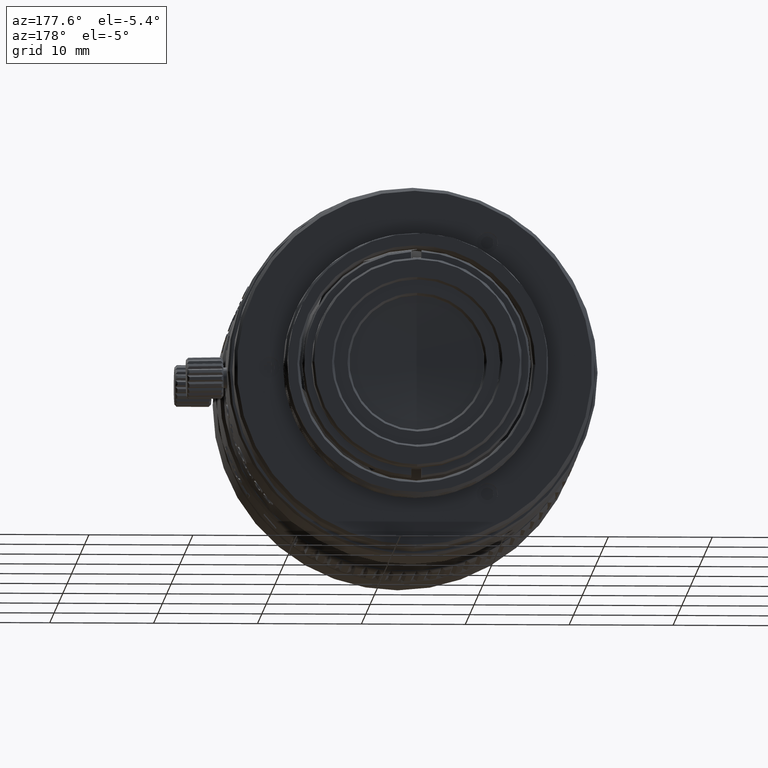
[diagram: clean part render]
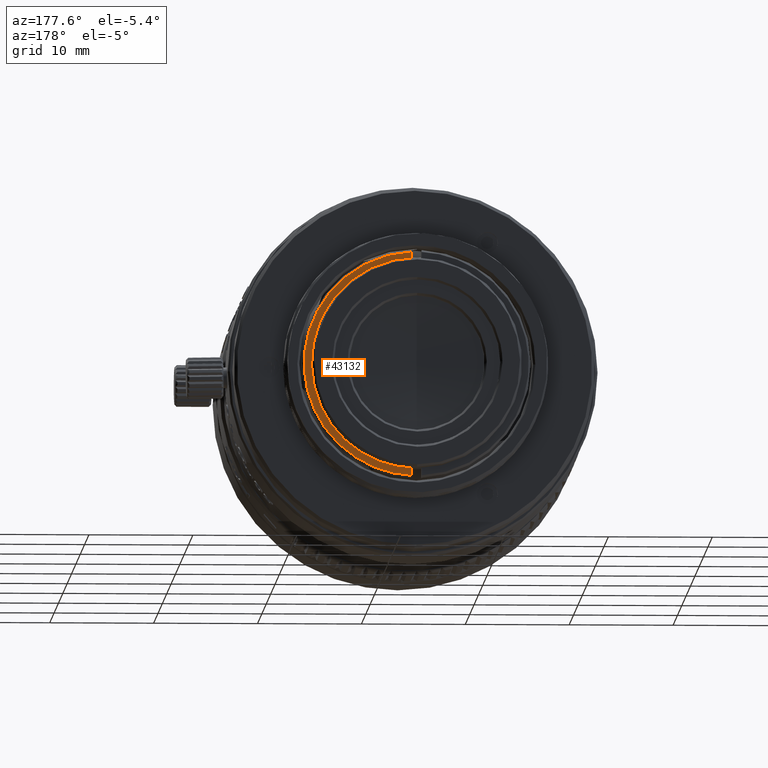
[diagram: same view with one face highlighted and labeled with its STEP entity id]
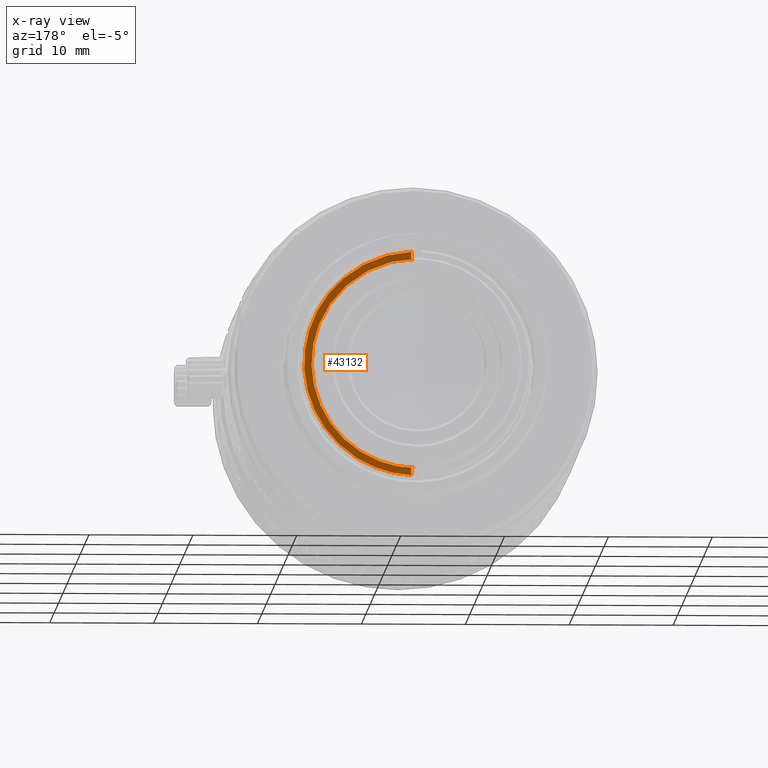
[diagram: x-ray of the same camera — body ghosted, the highlighted face saturated]
A machine part, auxiliary view. The second image highlights one B-rep face of the part: STEP entity #43132.
The next image is the same camera in x-ray: the body ghosted, the highlighted face saturated — about 0% of this face is hidden behind the body in this view.
In plain terms, the highlighted planar face has unit normal (-0, 1, 0).
Its self-contained STEP definition (entity closure, byte-faithful):
#529 = CARTESIAN_POINT ( 'NONE',  ( 27.33713607744954288, 26.79968554691911109, -14.85635807048966051 ) ) ;
#2360 = CARTESIAN_POINT ( 'NONE',  ( 25.56047190054950491, 26.79968554691999572, -10.30284207780749028 ) ) ;
#2707 = CARTESIAN_POINT ( 'NONE',  ( 23.60299717634650563, 26.79968554692000282, -8.589256409288241301 ) ) ;
#3398 = CARTESIAN_POINT ( 'NONE',  ( 19.86673896193413213, 26.79968554691999216, -6.962509980710264834 ) ) ;
#3749 = CARTESIAN_POINT ( 'NONE',  ( 25.80935437055234161, 26.79968554691999216, -24.43642396941281447 ) ) ;
#4094 = CARTESIAN_POINT ( 'NONE',  ( 18.00001204310195391, 26.79968554692106508, -28.28842973922828463 ) ) ;
#4449 = CARTESIAN_POINT ( 'NONE',  ( 28.29998020006328474, 26.79968554691999927, -16.85659046143310391 ) ) ;
#4803 = CARTESIAN_POINT ( 'NONE',  ( 26.81950141474292337, 26.79968554691999927, -22.95853280051197487 ) ) ;
#5147 = CARTESIAN_POINT ( 'NONE',  ( 21.87438170916146163, 26.79968554691999927, -27.37455550460336440 ) ) ;
#6916 = CARTESIAN_POINT ( 'NONE',  ( 27.60001204310027134, 26.79968554691911109, -18.82209861090353797 ) ) ;
#6949 = DIRECTION ( 'NONE',  ( -1.000000000000000000, -0.000000000000000000, -0.000000000000000000 ) ) ;
#7098 = VECTOR ( 'NONE', #29794, 1000.000000000000000 ) ;
#7333 = CARTESIAN_POINT ( 'NONE',  ( 24.26832506996089833, 26.79968554692000282, -9.053093370476080537 ) ) ;
#7684 = CARTESIAN_POINT ( 'NONE',  ( 21.56163175181769276, 26.79968554692000637, -7.492206879399524233 ) ) ;
#7984 = B_SPLINE_CURVE_WITH_KNOTS ( 'NONE', 3,
 ( #34026, #43664, #17625, #61467, #22962, #44719, #27249, #529, #39359, #6916, #65408, #38311, #60058, #11220, #22253, #55070, #44006, #49715 ),
 .UNSPECIFIED., .F., .F.,
 ( 4, 2, 2, 2, 2, 2, 2, 2, 4 ),
 ( 0.000000000000000000, 0.1250000000000000000, 0.2500000000000000000, 0.3750000000000000000, 0.5000000000000000000, 0.6250000000000000000, 0.7500000000000000000, 0.8750000000000000000, 1.000000000000000000 ),
 .UNSPECIFIED. ) ;
#8038 = CARTESIAN_POINT ( 'NONE',  ( 26.58857811623154532, 26.79968554692000282, -11.66514757952476344 ) ) ;
#9091 = CARTESIAN_POINT ( 'NONE',  ( 25.06263400779056738, 26.79968554692000282, -25.21862639297154374 ) ) ;
#9450 = CARTESIAN_POINT ( 'NONE',  ( 18.64324650201194444, 26.79968554691998861, -28.25861839632663930 ) ) ;
#9592 = PLANE ( 'NONE',  #34929 ) ;
#9791 = CARTESIAN_POINT ( 'NONE',  ( 26.95227233407412015, 26.79968554692000282, -22.72980570607565554 ) ) ;
#9940 = DIRECTION ( 'NONE',  ( 0.000000000000000000, -0.000000000000000000, 1.000000000000000000 ) ) ;
#10144 = CARTESIAN_POINT ( 'NONE',  ( 27.46735415838124439, 26.79968554691998506, -13.33995215619159502 ) ) ;
#10489 = CARTESIAN_POINT ( 'NONE',  ( 20.48212514140808693, 26.79968554691999927, -27.88262810915834322 ) ) ;
#10775 = VECTOR ( 'NONE', #28926, 1000.000000000000000 ) ;
#11220 = CARTESIAN_POINT ( 'NONE',  ( 23.70693391484915935, 26.79968554691911109, -25.57664681073966761 ) ) ;
#11468 = LINE ( 'NONE', #49617, #10775 ) ;
#11722 = EDGE_CURVE ( 'NONE', #20011, #41720, #7984, .T. ) ;
#12490 = VERTEX_POINT ( 'NONE', #34481 ) ;
#13047 = CARTESIAN_POINT ( 'NONE',  ( 18.32146130947540286, 26.79968554692000637, -6.726491552843290478 ) ) ;
#13400 = CARTESIAN_POINT ( 'NONE',  ( 26.53858885427339231, 26.79968554692000282, -11.58796707142741234 ) ) ;
#14107 = CARTESIAN_POINT ( 'NONE',  ( 18.80079432342783718, 26.79968554691999927, -6.770143046135738807 ) ) ;
#14448 = CARTESIAN_POINT ( 'NONE',  ( 19.98882452186247249, 26.79968554692000282, -28.00935080694689105 ) ) ;
#14819 = CARTESIAN_POINT ( 'NONE',  ( 23.74938675376660768, 26.79968554692000282, -26.30869993205574175 ) ) ;
#15179 = CARTESIAN_POINT ( 'NONE',  ( 28.17555686477118115, 26.79968554692000282, -19.13838155067529456 ) ) ;
#15420 = EDGE_CURVE ( 'NONE', #12490, #28917, #22661, .T. ) ;
#15523 = CARTESIAN_POINT ( 'NONE',  ( 28.07249572314301034, 26.79968554691999927, -15.29195520994843704 ) ) ;
#15865 = CARTESIAN_POINT ( 'NONE',  ( 22.11706206651808770, 26.79968554691999927, -27.26407096869130342 ) ) ;
#17336 = CARTESIAN_POINT ( 'NONE',  ( 18.00001204310621006, 26.79968554691999927, -6.280056944337999880 ) ) ;
#17518 = ORIENTED_EDGE ( 'NONE', *, *, #49829, .T. ) ;
#17625 = CARTESIAN_POINT ( 'NONE',  ( 20.14366567512839978, 26.79968554691910754, -7.662887668169943822 ) ) ;
#18033 = CARTESIAN_POINT ( 'NONE',  ( 21.28564626321333009, 26.79968554692000637, -7.382666502847968104 ) ) ;
#18383 = CARTESIAN_POINT ( 'NONE',  ( 18.00001204310299130, 26.79968554692071336, -6.711593665809799880 ) ) ;
#18392 = CARTESIAN_POINT ( 'NONE',  ( 18.00001204310299130, 26.79968554692071336, -6.711593665809799880 ) ) ;
#19311 = CARTESIAN_POINT ( 'NONE',  ( 17.50001204784383901, 26.79968554691976124, -27.60001170251995006 ) ) ;
#19790 = CARTESIAN_POINT ( 'NONE',  ( 21.52407330143829967, 26.79968554691999572, -27.52811439305934726 ) ) ;
#20011 = VERTEX_POINT ( 'NONE', #34560 ) ;
#20138 = CARTESIAN_POINT ( 'NONE',  ( 22.93948971335742115, 26.79968554691999572, -26.84198542652822539 ) ) ;
#20497 = CARTESIAN_POINT ( 'NONE',  ( 28.30002544619962634, 26.79968554691999927, -17.82172232306468374 ) ) ;
#20852 = CARTESIAN_POINT ( 'NONE',  ( 28.24287792501077377, 26.79968554692000282, -16.21726807795503333 ) ) ;
#21189 = CARTESIAN_POINT ( 'NONE',  ( 27.78176980312604982, 26.79968554692000282, -20.81319109728473649 ) ) ;
#22253 = CARTESIAN_POINT ( 'NONE',  ( 22.58656374484899487, 26.79968554691910398, -26.32525422489630884 ) ) ;
#22661 = LINE ( 'NONE', #17336, #48120 ) ;
#22962 = CARTESIAN_POINT ( 'NONE',  ( 23.70693391484596191, 26.79968554691910754, -9.423376594297881326 ) ) ;
#23725 = CARTESIAN_POINT ( 'NONE',  ( 21.75745361187669502, 26.79968554692000993, -7.574492694009251181 ) ) ;
#23785 = CARTESIAN_POINT ( 'NONE',  ( 18.00001204310195391, 26.79968554692106508, -28.28842973922828463 ) ) ;
#25128 = CARTESIAN_POINT ( 'NONE',  ( 21.67921738303905954, 26.79968554691999927, -7.541293001918196737 ) ) ;
#25479 = CARTESIAN_POINT ( 'NONE',  ( 27.56648502391222522, 26.79968554691999572, -13.58748732544543003 ) ) ;
#25826 = CARTESIAN_POINT ( 'NONE',  ( 27.51709315295559932, 26.79968554692000282, -13.46267400176193796 ) ) ;
#26188 = CARTESIAN_POINT ( 'NONE',  ( 27.45502594864455403, 26.79968554691999572, -21.70273719311448701 ) ) ;
#26543 = CARTESIAN_POINT ( 'NONE',  ( 24.67162662991011146, 26.79968554691999927, -25.58934416184048999 ) ) ;
#26880 = CARTESIAN_POINT ( 'NONE',  ( 28.12513568677261944, 26.79968554692000282, -15.56427012500696350 ) ) ;
#27041 = ORIENTED_EDGE ( 'NONE', *, *, #11722, .F. ) ;
#27112 = ORIENTED_EDGE ( 'NONE', *, *, #53288, .T. ) ;
#27249 = CARTESIAN_POINT ( 'NONE',  ( 26.32525456547731579, 26.79968554691910754, -12.41346000077276202 ) ) ;
#28917 = VERTEX_POINT ( 'NONE', #18383 ) ;
#28926 = DIRECTION ( 'NONE',  ( 1.000000000000000000, 0.000000000000000000, 0.000000000000000000 ) ) ;
#29441 = CARTESIAN_POINT ( 'NONE',  ( 22.63203422411329058, 26.79968554691999216, -7.985668884362986830 ) ) ;
#29794 = DIRECTION ( 'NONE',  ( 0.000000000000000000, -0.000000000000000000, 1.000000000000000000 ) ) ;
#30487 = CARTESIAN_POINT ( 'NONE',  ( 19.35504462323355668, 26.79968554691999927, -6.858352948107492963 ) ) ;
#30845 = CARTESIAN_POINT ( 'NONE',  ( 28.14275979132685279, 26.79968554691999927, -19.33671167225441323 ) ) ;
#31209 = CARTESIAN_POINT ( 'NONE',  ( 28.27862341638762089, 26.79968554691999216, -18.30249950856731189 ) ) ;
#31553 = CARTESIAN_POINT ( 'NONE',  ( 26.25122105183945820, 26.79968554691999216, -23.87000631971318043 ) ) ;
#31905 = CARTESIAN_POINT ( 'NONE',  ( 27.68512398904423577, 26.79968554691999927, -21.09395197531915400 ) ) ;
#32253 = CARTESIAN_POINT ( 'NONE',  ( 20.19516786306562039, 26.79968554691999927, -27.95893419698714766 ) ) ;
#34026 = CARTESIAN_POINT ( 'NONE',  ( 17.50001204310215996, 26.79968554691961913, -7.400011702519049273 ) ) ;
#34445 = CARTESIAN_POINT ( 'NONE',  ( 23.53131512291296090, 26.79968554692000993, -8.540592243210546997 ) ) ;
#34481 = CARTESIAN_POINT ( 'NONE',  ( 18.00001204310414238, 26.79968554692040428, -7.400011702517978129 ) ) ;
#34560 = CARTESIAN_POINT ( 'NONE',  ( 17.50001204310215996, 26.79968554691961913, -7.400011702519049273 ) ) ;
#34662 = VECTOR ( 'NONE', #6949, 1000.000000000000000 ) ;
#34716 = EDGE_CURVE ( 'NONE', #62809, #54591, #51894, .T. ) ;
#34741 = EDGE_CURVE ( 'NONE', #28917, #62809, #38439, .T. ) ;
#34929 = AXIS2_PLACEMENT_3D ( 'NONE', #47741, #69479, #9940 ) ;
#35825 = CARTESIAN_POINT ( 'NONE',  ( 18.00001204310324354, 26.79968554691999927, -6.280056944337999880 ) ) ;
#36165 = CARTESIAN_POINT ( 'NONE',  ( 27.54977105900491097, 26.79968554691999927, -13.54473300246584166 ) ) ;
#36536 = CARTESIAN_POINT ( 'NONE',  ( 19.27856933981106025, 26.79968554691999927, -28.17201018828195913 ) ) ;
#36679 = FACE_OUTER_BOUND ( 'NONE', #51313, .T. ) ;
#36886 = CARTESIAN_POINT ( 'NONE',  ( 27.08379655684292686, 26.79968554691999927, -12.49886535598977666 ) ) ;
#37238 = CARTESIAN_POINT ( 'NONE',  ( 27.61199223355881216, 26.79968554692000282, -21.29337339468490953 ) ) ;
#37590 = CARTESIAN_POINT ( 'NONE',  ( 21.99677454087494866, 26.79968554691999572, -27.31943819850167543 ) ) ;
#38311 = CARTESIAN_POINT ( 'NONE',  ( 26.32525456547934084, 26.79968554691911109, -22.58656340426375309 ) ) ;
#38439 = B_SPLINE_CURVE_WITH_KNOTS ( 'NONE', 3,
 ( #18392, #13047, #14107, #30487, #40841, #45485, #52242, #3398, #46192, #56535, #56894, #18033, #7684, #25128, #23725, #46886, #39784, #29441, #61528, #67936, #34445, #2707, #7333, #51203, #2360, #45846, #40494, #62241, #13400, #8038, #51556, #36886, #53651, #10144, #25826, #36165, #25479, #42610, #58982, #41536, #15523, #53999, #58286, #42257, #26880, #20852, #4449, #20497, #31209, #64008, #15179, #41886, #30845, #63281, #47950, #58637, #21189, #31905, #69686, #37238, #47228, #26188, #52596, #9791, #4803, #69327, #64354, #31553, #3749, #9091, #26543, #64693, #48301, #70021, #14819, #68974, #20138, #42951, #15865, #37590, #59338, #5147, #19790, #57926, #10489, #32253, #68630, #14448, #63639, #52951, #36536, #9450, #4094 ),
 .UNSPECIFIED., .F., .F.,
 ( 4, 1, 1, 1, 1, 2, 2, 1, 1, 1, 2, 2, 1, 1, 2, 2, 2, 1, 1, 2, 2, 1, 1, 1, 2, 2, 1, 1, 1, 1, 2, 2, 2, 1, 1, 1, 2, 2, 1, 1, 1, 2, 2, 1, 1, 2, 2, 2, 1, 1, 2, 2, 1, 1, 1, 2, 2, 1, 1, 1, 1, 2, 2, 4 ),
 ( 0.000000000000000000, 0.03124999999999483746, 0.04687499999999242967, 0.05468749999999121536, 0.05859374999999061168, 0.06054687499999045902, 0.06249999999999031330, 0.09374999999999278355, 0.1093749999999940326, 0.1171874999999945044, 0.1210937499999947403, 0.1249999999999949762, 0.1562499999999969469, 0.1718749999999979738, 0.1796874999999985012, 0.1874999999999990563, 0.2500000000000031086, 0.2812500000000052180, 0.2968750000000062728, 0.3046875000000068279, 0.3125000000000073830, 0.3437500000000099365, 0.3593750000000111022, 0.3671875000000117684, 0.3710937500000122125, 0.3750000000000126010, 0.4062500000000168199, 0.4218750000000187628, 0.4296875000000197620, 0.4335937500000202061, 0.4355468750000204281, 0.4375000000000206501, 0.5000000000000226485, 0.5312500000000234257, 0.5468750000000240918, 0.5546875000000244249, 0.5585937500000244249, 0.5625000000000244249, 0.5937500000000242029, 0.6093750000000242029, 0.6171875000000244249, 0.6210937500000244249, 0.6250000000000244249, 0.6562500000000234257, 0.6718750000000229816, 0.6796875000000227596, 0.6875000000000224265, 0.7500000000000199840, 0.7812500000000185407, 0.7968750000000178746, 0.8046875000000176525, 0.8125000000000173195, 0.8437500000000156541, 0.8593750000000147660, 0.8671875000000144329, 0.8710937500000140998, 0.8750000000000137668, 0.9062500000000123235, 0.9218750000000116573, 0.9296875000000112133, 0.9335937500000109912, 0.9355468750000108802, 0.9375000000000107692, 1.000000000000000000 ),
 .UNSPECIFIED. ) ;
#39359 = CARTESIAN_POINT ( 'NONE',  ( 27.60001204309974554, 26.79968554691910754, -16.17792479413246554 ) ) ;
#39773 = DIRECTION ( 'NONE',  ( 0.000000000000000000, -0.000000000000000000, 1.000000000000000000 ) ) ;
#39784 = CARTESIAN_POINT ( 'NONE',  ( 22.15911151173520466, 26.79968554692000993, -7.750242702679368989 ) ) ;
#40494 = CARTESIAN_POINT ( 'NONE',  ( 26.28654852752706006, 26.79968554691999216, -11.21550058455686738 ) ) ;
#40841 = CARTESIAN_POINT ( 'NONE',  ( 19.63092688568506006, 26.79968554691999927, -6.911778689042675339 ) ) ;
#41536 = CARTESIAN_POINT ( 'NONE',  ( 28.00955651566699700, 26.79968554691999216, -15.00177293137999257 ) ) ;
#41720 = VERTEX_POINT ( 'NONE', #19311 ) ;
#41886 = CARTESIAN_POINT ( 'NONE',  ( 28.15614642886559338, 26.79968554692000282, -19.25740198293919292 ) ) ;
#42257 = CARTESIAN_POINT ( 'NONE',  ( 28.12109463799969333, 26.79968554692000282, -15.54220895174729478 ) ) ;
#42610 = CARTESIAN_POINT ( 'NONE',  ( 27.70366127468683004, 26.79968554691999927, -13.94452932433393322 ) ) ;
#42951 = CARTESIAN_POINT ( 'NONE',  ( 22.39493509787646630, 26.79968554691999927, -27.12995006101609619 ) ) ;
#43132 = ADVANCED_FACE ( 'NONE', ( #36679 ), #9592, .T. ) ;
#43664 = CARTESIAN_POINT ( 'NONE',  ( 18.82209895148553613, 26.79968554691910043, -7.400011702519998735 ) ) ;
#44006 = CARTESIAN_POINT ( 'NONE',  ( 18.82209895148954715, 26.79968554691910754, -27.60001170251948110 ) ) ;
#44719 = CARTESIAN_POINT ( 'NONE',  ( 25.57664715132089484, 26.79968554691911109, -11.29308983077244122 ) ) ;
#45485 = CARTESIAN_POINT ( 'NONE',  ( 19.76855729504796955, 26.79968554691999572, -6.940821756997597625 ) ) ;
#45846 = CARTESIAN_POINT ( 'NONE',  ( 25.91268997154102749, 26.79968554692000637, -10.71059306087968999 ) ) ;
#46192 = CARTESIAN_POINT ( 'NONE',  ( 19.88526505946827427, 26.79968554692000282, -6.966685445010837974 ) ) ;
#46886 = CARTESIAN_POINT ( 'NONE',  ( 21.79500193287616128, 26.79968554692000637, -7.590676189098064519 ) ) ;
#47228 = CARTESIAN_POINT ( 'NONE',  ( 27.59756443966684358, 26.79968554691999572, -21.33163069054502969 ) ) ;
#47741 = CARTESIAN_POINT ( 'NONE',  ( 6.260726893475999866, 26.79968554691999927, -6.280056944337999880 ) ) ;
#47950 = CARTESIAN_POINT ( 'NONE',  ( 28.06840412604594448, 26.79968554691999927, -19.75056383279079597 ) ) ;
#48120 = VECTOR ( 'NONE', #39773, 1000.000000000000000 ) ;
#48301 = CARTESIAN_POINT ( 'NONE',  ( 23.96921197683980154, 26.79968554691999572, -26.14860471158797850 ) ) ;
#49617 = CARTESIAN_POINT ( 'NONE',  ( 6.260726893475999866, 26.79968554691999927, -7.400011702518100698 ) ) ;
#49715 = CARTESIAN_POINT ( 'NONE',  ( 17.50001204784383901, 26.79968554691976124, -27.60001170251995006 ) ) ;
#49829 = EDGE_CURVE ( 'NONE', #54591, #41720, #56865, .T. ) ;
#51203 = CARTESIAN_POINT ( 'NONE',  ( 24.81367858503798729, 26.79968554691999216, -9.520709304150274832 ) ) ;
#51313 = EDGE_LOOP ( 'NONE', ( #64822, #17518, #27041, #27112, #57545, #69333 ) ) ;
#51528 = CARTESIAN_POINT ( 'NONE',  ( 6.260726893475999866, 26.79968554691999927, -27.60001170251993940 ) ) ;
#51556 = CARTESIAN_POINT ( 'NONE',  ( 26.82418119651477895, 26.79968554692000993, -12.03877703449219716 ) ) ;
#51894 = LINE ( 'NONE', #35825, #7098 ) ;
#52242 = CARTESIAN_POINT ( 'NONE',  ( 19.82747517294718165, 26.79968554692000637, -6.953768114154132540 ) ) ;
#52596 = CARTESIAN_POINT ( 'NONE',  ( 27.24174677580476711, 26.79968554691999216, -22.18605217667785467 ) ) ;
#52951 = CARTESIAN_POINT ( 'NONE',  ( 19.92558715702215011, 26.79968554692000282, -28.02412370655689600 ) ) ;
#53288 = EDGE_CURVE ( 'NONE', #20011, #12490, #11468, .T. ) ;
#53651 = CARTESIAN_POINT ( 'NONE',  ( 27.34624155587190231, 26.79968554691999927, -13.05616777159280062 ) ) ;
#53999 = CARTESIAN_POINT ( 'NONE',  ( 28.10144109041858584, 26.79968554691999572, -15.43776651919993270 ) ) ;
#54591 = VERTEX_POINT ( 'NONE', #61755 ) ;
#55070 = CARTESIAN_POINT ( 'NONE',  ( 20.14366567513229711, 26.79968554691911109, -27.33713573686901199 ) ) ;
#56535 = CARTESIAN_POINT ( 'NONE',  ( 20.23742850904711688, 26.79968554692000282, -7.047143808875734550 ) ) ;
#56865 = LINE ( 'NONE', #51528, #34662 ) ;
#56894 = CARTESIAN_POINT ( 'NONE',  ( 20.72719922298660222, 26.79968554691999927, -7.183561387046252023 ) ) ;
#57545 = ORIENTED_EDGE ( 'NONE', *, *, #15420, .T. ) ;
#57926 = CARTESIAN_POINT ( 'NONE',  ( 21.04934961342530286, 26.79968554691999927, -27.71011042433498517 ) ) ;
#58286 = CARTESIAN_POINT ( 'NONE',  ( 28.11330534000903469, 26.79968554691999572, -15.50041140244357329 ) ) ;
#58637 = CARTESIAN_POINT ( 'NONE',  ( 27.95480739506214363, 26.79968554691999572, -20.24612502031337513 ) ) ;
#58982 = CARTESIAN_POINT ( 'NONE',  ( 27.86348420901557077, 26.79968554691999572, -14.42716973398139224 ) ) ;
#59338 = CARTESIAN_POINT ( 'NONE',  ( 21.91631639408342735, 26.79968554692000282, -27.35588009411006993 ) ) ;
#60058 = CARTESIAN_POINT ( 'NONE',  ( 25.57664715132334976, 26.79968554691910398, -23.70693357426436876 ) ) ;
#61467 = CARTESIAN_POINT ( 'NONE',  ( 22.58656374484549545, 26.79968554691909688, -8.674769180141677083 ) ) ;
#61528 = CARTESIAN_POINT ( 'NONE',  ( 23.16180311787828927, 26.79968554692000637, -8.300006715917170652 ) ) ;
#61755 = CARTESIAN_POINT ( 'NONE',  ( 18.00001204310240865, 26.79968554691999927, -27.60001170251996427 ) ) ;
#62241 = CARTESIAN_POINT ( 'NONE',  ( 26.43883165291308401, 26.79968554692000282, -11.43814624686701364 ) ) ;
#62809 = VERTEX_POINT ( 'NONE', #23785 ) ;
#63281 = CARTESIAN_POINT ( 'NONE',  ( 28.13624107180305955, 26.79968554691999572, -19.37414066708958771 ) ) ;
#63639 = CARTESIAN_POINT ( 'NONE',  ( 19.94743240563094488, 26.79968554692000282, -28.01906682490065492 ) ) ;
#64008 = CARTESIAN_POINT ( 'NONE',  ( 28.21616123906670737, 26.79968554691999572, -18.86027592068897718 ) ) ;
#64354 = CARTESIAN_POINT ( 'NONE',  ( 26.68375844234326877, 26.79968554691999927, -23.18391788637388373 ) ) ;
#64693 = CARTESIAN_POINT ( 'NONE',  ( 24.18456876184202997, 26.79968554692000282, -25.98617720042771495 ) ) ;
#64822 = ORIENTED_EDGE ( 'NONE', *, *, #34716, .T. ) ;
#65408 = CARTESIAN_POINT ( 'NONE',  ( 27.33713607745058738, 26.79968554691910398, -20.14366533454645491 ) ) ;
#67936 = CARTESIAN_POINT ( 'NONE',  ( 23.38413815720412359, 26.79968554691999927, -8.443224490781100045 ) ) ;
#68630 = CARTESIAN_POINT ( 'NONE',  ( 20.05085296331093048, 26.79968554691999927, -27.99459905225581835 ) ) ;
#68974 = CARTESIAN_POINT ( 'NONE',  ( 23.38706547422258097, 26.79968554691999572, -26.56134804987437548 ) ) ;
#69327 = CARTESIAN_POINT ( 'NONE',  ( 26.72905181423240251, 26.79968554692000282, -23.11005972292540633 ) ) ;
#69333 = ORIENTED_EDGE ( 'NONE', *, *, #34741, .T. ) ;
#69479 = DIRECTION ( 'NONE',  ( -0.000000000000000000, 1.000000000000000000, 0.000000000000000000 ) ) ;
#69686 = CARTESIAN_POINT ( 'NONE',  ( 27.64153427912765082, 26.79968554691999572, -21.21368403152293425 ) ) ;
#70021 = CARTESIAN_POINT ( 'NONE',  ( 23.82417018713002577, 26.79968554691999927, -26.25519109878563029 ) ) ;